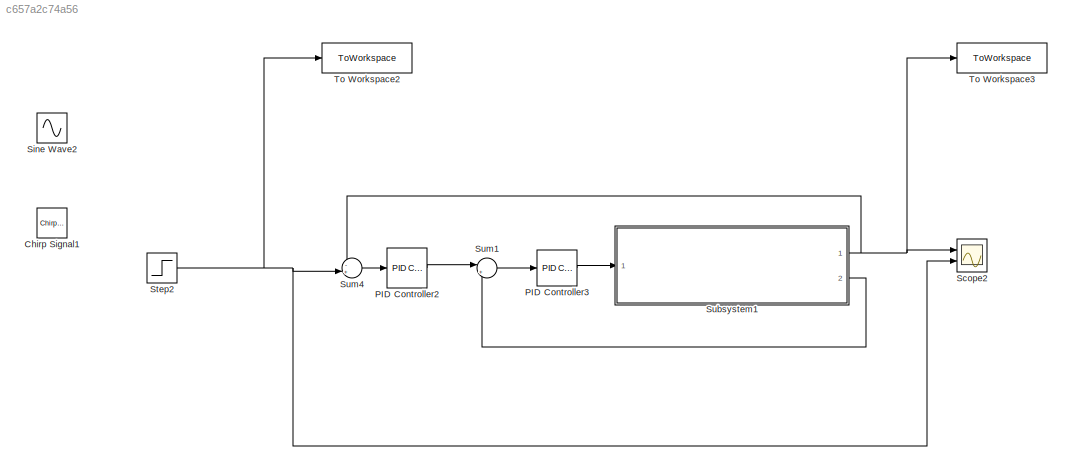
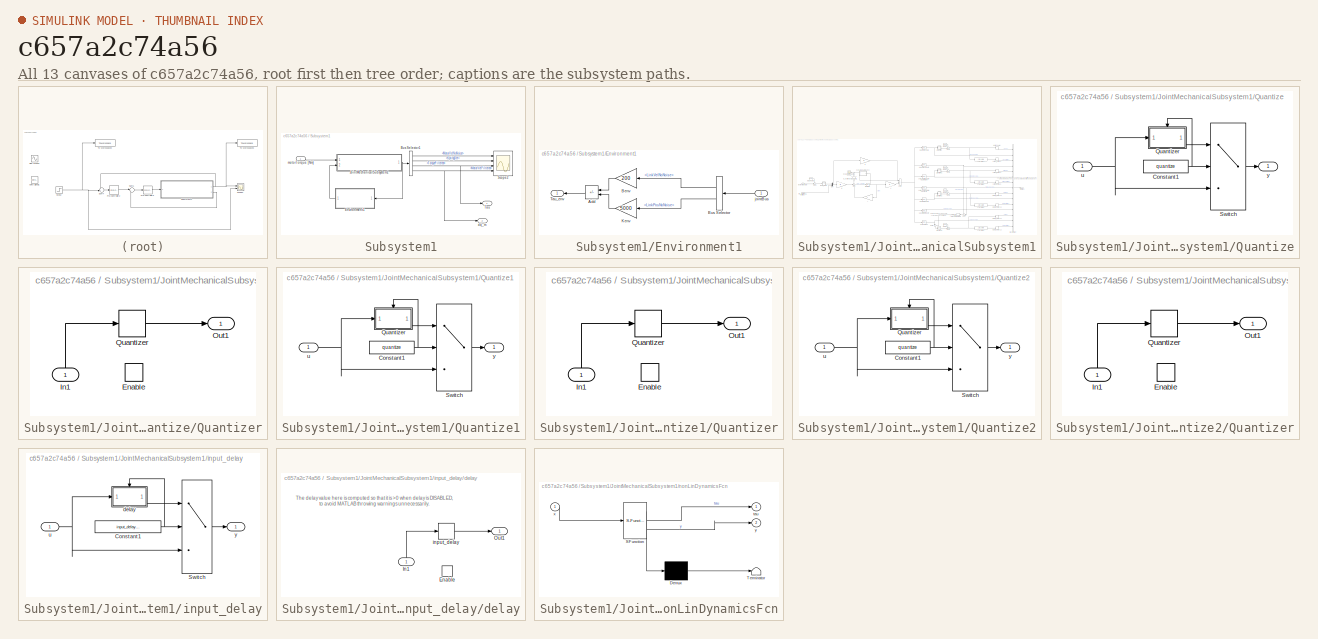
[diagram: thumbnail index - all 13 canvases of the model, root first then tree order]
MODEL slx_c657a2c74a56
KIND model
CONFIG AbsTol = auto
CONFIG EnableMultiTasking = off
CONFIG FixedStep = 0.0005
CONFIG MaxStep = auto
CONFIG MinStep = auto
CONFIG RelTol = 1e-3
CONFIG SampleTimeConstraint = Unconstrained
CONFIG Solver = FixedStepAuto
CONFIG SolverName = FixedStepAuto
CONFIG StartTime = 0.0
CONFIG StopTime = 10
BLOCK [Reference] Chirp Signal1  REF=simulink/Sources/Chirp Signal
  Ports = [0, 1]
  SourceBlock = simulink/Sources/Chirp Signal
  SourceProductBaseCode = SL
  SourceType = chirp
BLOCK [Reference] PID Controller2  REF=simulink/Continuous/PID Controller
  Ports = [1, 1]
  SourceBlock = simulink/Continuous/PID Controller
  SourceProductBaseCode = SL
  SourceType = PID 1dof
BLOCK [Reference] PID Controller3  REF=simulink/Continuous/PID Controller
  Ports = [1, 1]
  SourceBlock = simulink/Continuous/PID Controller
  SourceProductBaseCode = SL
  SourceType = PID 1dof
BLOCK [Scope] Scope2
  Floating = off
  NumInputPorts = 2
  Ports = [2]
  ScopeSpecificationString = Simulink.scopes.TimeScopeBlockCfg('CurrentConfiguration', extmgr.ConfigurationSet(extmgr.Configuration('Core','General UI',true),extmgr.Configuration('Core','Source UI',true),extmgr.Configuration('Sources','WiredSimulink',true,'DataLoggingVariableName','ScopeData1'),extmgr.Configuration('Visuals','Time Domain',true,'SerializedDisplays',{struct('MinYLimReal','-2.2814','MaxYLimReal','19.5962','YLabe...<+1487ch>
BLOCK [Sin] Sine Wave2
  Frequency = 2*pi*50
  Ports = [0, 1]
  SampleTime = 0
BLOCK [Step] Step2
  After = 10
  SampleTime = 0
BLOCK [SubSystem] Subsystem1
  Ports = [1, 2]
  RequestExecContextInheritance = off
BLOCK [BusSelector] Subsystem1/Bus Selector1
  OutputSignals = MotorVelNoNoise,SpringDef,TorqueFiltered,MotorVelFiltered
  Ports = [1, 4]
BLOCK [SubSystem] Subsystem1/Environment1
  Ports = [1, 1]
  RequestExecContextInheritance = off
BLOCK [Sum] Subsystem1/Environment1/Add
  IconShape = rectangular
  Inputs = --
  Ports = [2, 1]
BLOCK [Gain] Subsystem1/Environment1/Benv
  Gain = 200
BLOCK [BusSelector] Subsystem1/Environment1/Bus Selector
  OutputSignals = LinkVelNoNoise,LinkPosNoNoise
  Ports = [1, 2]
BLOCK [Gain] Subsystem1/Environment1/Kenv
  Gain = 5000
BLOCK [Outport] Subsystem1/Environment1/Tau_env
BLOCK [Inport] Subsystem1/Environment1/jointBus
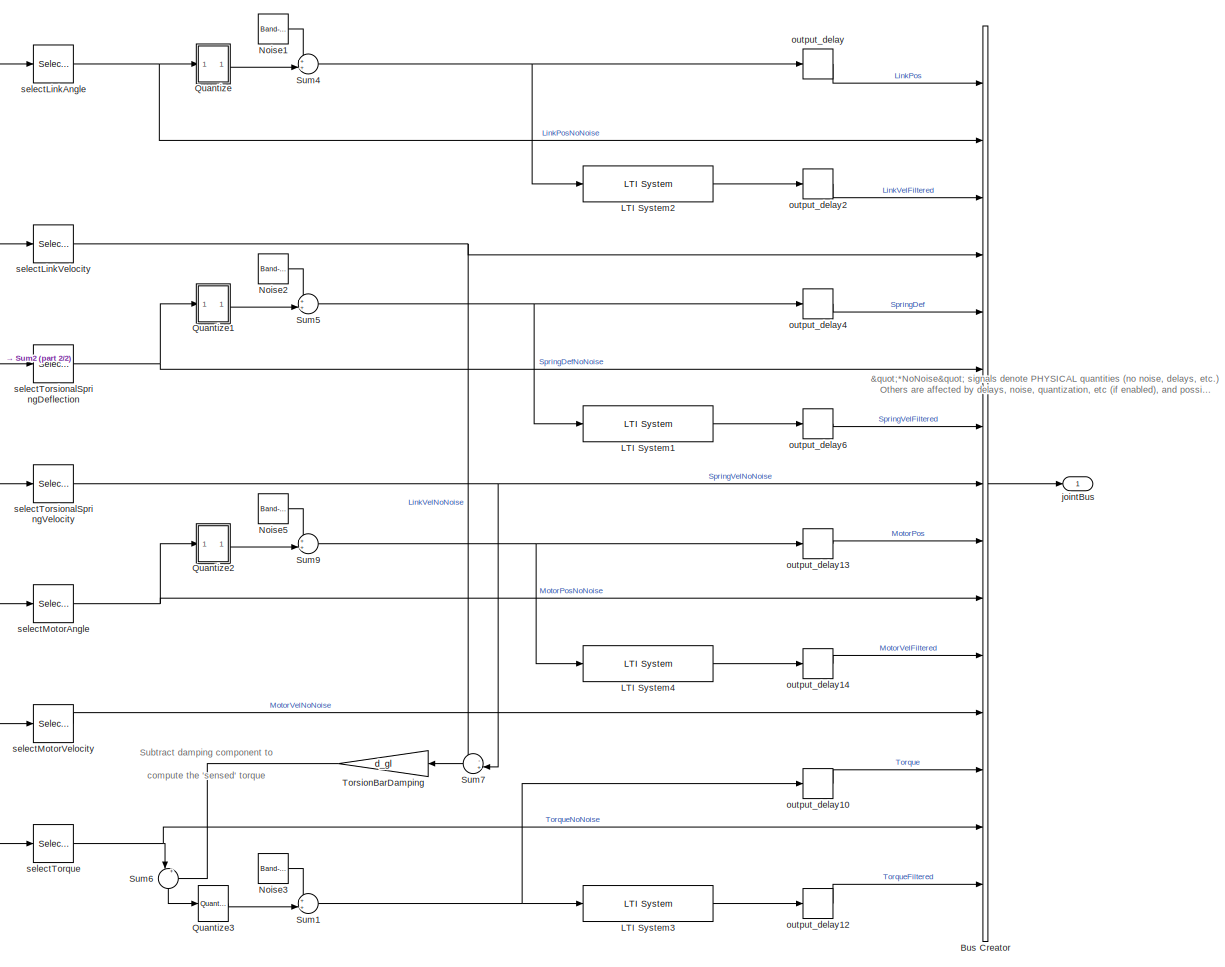
[diagram: Subsystem1/JointMechanicalSubsystem1 - part 1/2, right side, full height]
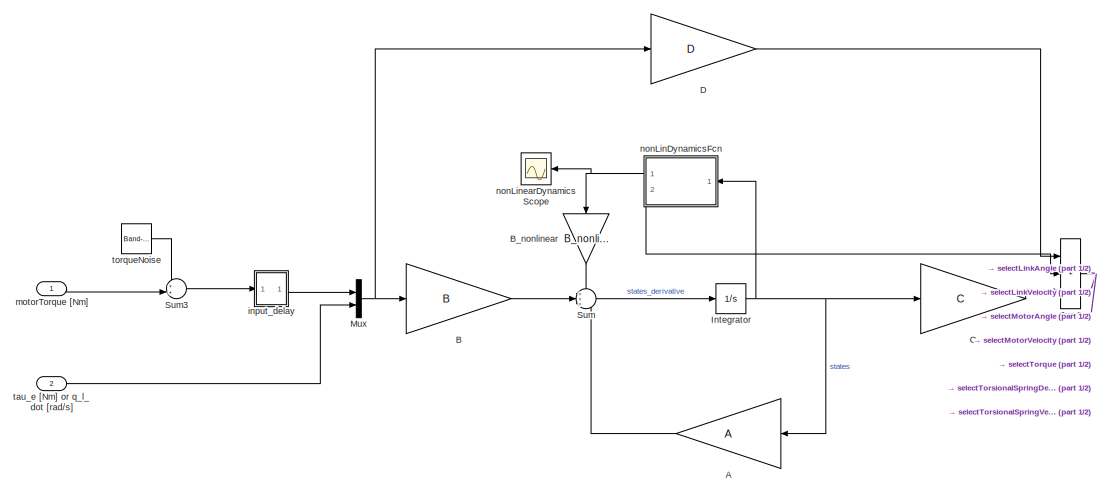
[diagram: Subsystem1/JointMechanicalSubsystem1 - part 2/2, middle left region]
BLOCK [SubSystem] Subsystem1/JointMechanicalSubsystem1
  AncestorBlock = cjt_library_models/Joint models/JointMechanicalSubsystem
  Ports = [2, 1]
  RequestExecContextInheritance = off
BLOCK [Gain] Subsystem1/JointMechanicalSubsystem1/A
  Gain = A
  Multiplication = Matrix(K*u)
BLOCK [Gain] Subsystem1/JointMechanicalSubsystem1/B
  Gain = B
  Multiplication = Matrix(K*u)
BLOCK [Gain] Subsystem1/JointMechanicalSubsystem1/B_nonlinear
  Gain = B_nonlinear
  NameLocation = left
BLOCK [BusCreator] Subsystem1/JointMechanicalSubsystem1/Bus Creator
  DisplayOption = bar
  InheritFromInputs = on
  Inputs = 15
  Ports = [15, 1]
BLOCK [Gain] Subsystem1/JointMechanicalSubsystem1/C
  Gain = C
  Multiplication = Matrix(K*u)
  NameLocation = top
BLOCK [Gain] Subsystem1/JointMechanicalSubsystem1/D
  Gain = D
  Multiplication = Matrix(K*u)
BLOCK [Integrator] Subsystem1/JointMechanicalSubsystem1/Integrator
  Ports = [1, 1]
BLOCK [Reference] Subsystem1/JointMechanicalSubsystem1/LTI System1  REF=cstblocks/LTI System
  Ports = [1, 1]
  SourceBlock = cstblocks/LTI System
  SourceProductBaseCode = CT
  SourceType = LTI Block
BLOCK [Reference] Subsystem1/JointMechanicalSubsystem1/LTI System2  REF=cstblocks/LTI System
  Ports = [1, 1]
  SourceBlock = cstblocks/LTI System
  SourceProductBaseCode = CT
  SourceType = LTI Block
BLOCK [Reference] Subsystem1/JointMechanicalSubsystem1/LTI System3  REF=cstblocks/LTI System
  Ports = [1, 1]
  SourceBlock = cstblocks/LTI System
  SourceProductBaseCode = CT
  SourceType = LTI Block
BLOCK [Reference] Subsystem1/JointMechanicalSubsystem1/LTI System4  REF=cstblocks/LTI System
  Ports = [1, 1]
  SourceBlock = cstblocks/LTI System
  SourceProductBaseCode = CT
  SourceType = LTI Block
BLOCK [Mux] Subsystem1/JointMechanicalSubsystem1/Mux
  DisplayOption = bar
  Inputs = 2
  Ports = [2, 1]
BLOCK [Reference] Subsystem1/JointMechanicalSubsystem1/Noise1  REF=simulink/Sources/Band-Limited
White Noise
  Ports = [0, 1]
  SourceBlock = simulink/Sources/Band-Limited\nWhite Noise
  SourceProductBaseCode = SL
  SourceType = Band-Limited White Noise.
BLOCK [Reference] Subsystem1/JointMechanicalSubsystem1/Noise2  REF=simulink/Sources/Band-Limited
White Noise
  Ports = [0, 1]
  SourceBlock = simulink/Sources/Band-Limited\nWhite Noise
  SourceProductBaseCode = SL
  SourceType = Band-Limited White Noise.
BLOCK [Reference] Subsystem1/JointMechanicalSubsystem1/Noise3  REF=simulink/Sources/Band-Limited
White Noise
  Ports = [0, 1]
  SourceBlock = simulink/Sources/Band-Limited\nWhite Noise
  SourceProductBaseCode = SL
  SourceType = Band-Limited White Noise.
BLOCK [Reference] Subsystem1/JointMechanicalSubsystem1/Noise5  REF=simulink/Sources/Band-Limited
White Noise
  Ports = [0, 1]
  SourceBlock = simulink/Sources/Band-Limited\nWhite Noise
  SourceProductBaseCode = SL
  SourceType = Band-Limited White Noise.
BLOCK [SubSystem] Subsystem1/JointMechanicalSubsystem1/Quantize
  Ports = [1, 1]
  RequestExecContextInheritance = off
BLOCK [Constant] Subsystem1/JointMechanicalSubsystem1/Quantize/Constant1
  Value = quantize
BLOCK [SubSystem] Subsystem1/JointMechanicalSubsystem1/Quantize/Quantizer
  Ports = [1, 1, 1]
  RequestExecContextInheritance = off
BLOCK [EnablePort] Subsystem1/JointMechanicalSubsystem1/Quantize/Quantizer/Enable
  Ports = []
BLOCK [Inport] Subsystem1/JointMechanicalSubsystem1/Quantize/Quantizer/In1
  NameLocation = right
BLOCK [Outport] Subsystem1/JointMechanicalSubsystem1/Quantize/Quantizer/Out1
BLOCK [Quantizer] Subsystem1/JointMechanicalSubsystem1/Quantize/Quantizer/Quantizer
  QuantizationInterval = 1/(2^quantize_bits)
BLOCK [Switch] Subsystem1/JointMechanicalSubsystem1/Quantize/Switch
  Criteria = u2 > Threshold
  InputSameDT = off
  SaturateOnIntegerOverflow = off
  Threshold = 0.5
BLOCK [Inport] Subsystem1/JointMechanicalSubsystem1/Quantize/u
BLOCK [Outport] Subsystem1/JointMechanicalSubsystem1/Quantize/y
BLOCK [SubSystem] Subsystem1/JointMechanicalSubsystem1/Quantize1
  Ports = [1, 1]
  RequestExecContextInheritance = off
BLOCK [Constant] Subsystem1/JointMechanicalSubsystem1/Quantize1/Constant1
  Value = quantize
BLOCK [SubSystem] Subsystem1/JointMechanicalSubsystem1/Quantize1/Quantizer
  Ports = [1, 1, 1]
  RequestExecContextInheritance = off
BLOCK [EnablePort] Subsystem1/JointMechanicalSubsystem1/Quantize1/Quantizer/Enable
  Ports = []
BLOCK [Inport] Subsystem1/JointMechanicalSubsystem1/Quantize1/Quantizer/In1
  NameLocation = right
BLOCK [Outport] Subsystem1/JointMechanicalSubsystem1/Quantize1/Quantizer/Out1
BLOCK [Quantizer] Subsystem1/JointMechanicalSubsystem1/Quantize1/Quantizer/Quantizer
  QuantizationInterval = 1/(2^quantize_bits)
BLOCK [Switch] Subsystem1/JointMechanicalSubsystem1/Quantize1/Switch
  Criteria = u2 > Threshold
  InputSameDT = off
  SaturateOnIntegerOverflow = off
  Threshold = 0.5
BLOCK [Inport] Subsystem1/JointMechanicalSubsystem1/Quantize1/u
BLOCK [Outport] Subsystem1/JointMechanicalSubsystem1/Quantize1/y
BLOCK [SubSystem] Subsystem1/JointMechanicalSubsystem1/Quantize2
  Ports = [1, 1]
  RequestExecContextInheritance = off
BLOCK [Constant] Subsystem1/JointMechanicalSubsystem1/Quantize2/Constant1
  Value = quantize
BLOCK [SubSystem] Subsystem1/JointMechanicalSubsystem1/Quantize2/Quantizer
  Ports = [1, 1, 1]
  RequestExecContextInheritance = off
BLOCK [EnablePort] Subsystem1/JointMechanicalSubsystem1/Quantize2/Quantizer/Enable
  Ports = []
BLOCK [Inport] Subsystem1/JointMechanicalSubsystem1/Quantize2/Quantizer/In1
  NameLocation = right
BLOCK [Outport] Subsystem1/JointMechanicalSubsystem1/Quantize2/Quantizer/Out1
BLOCK [Quantizer] Subsystem1/JointMechanicalSubsystem1/Quantize2/Quantizer/Quantizer
  QuantizationInterval = 1/(2^quantize_bits)
BLOCK [Switch] Subsystem1/JointMechanicalSubsystem1/Quantize2/Switch
  Criteria = u2 > Threshold
  InputSameDT = off
  SaturateOnIntegerOverflow = off
  Threshold = 0.5
BLOCK [Inport] Subsystem1/JointMechanicalSubsystem1/Quantize2/u
BLOCK [Outport] Subsystem1/JointMechanicalSubsystem1/Quantize2/y
BLOCK [Reference] Subsystem1/JointMechanicalSubsystem1/Quantize3  REF=cjt_library_models/Joint models/JointMechanicalSubsystem/Quantize2
  Ports = [1, 1]
  SourceBlock = cjt_library_models/Joint models/JointMechanicalSubsystem/Quantize2
  SourceType = SubSystem
BLOCK [Sum] Subsystem1/JointMechanicalSubsystem1/Sum
  Inputs = +++
  Ports = [3, 1]
BLOCK [Sum] Subsystem1/JointMechanicalSubsystem1/Sum1
  Inputs = ++|
  Ports = [2, 1]
BLOCK [Sum] Subsystem1/JointMechanicalSubsystem1/Sum2
  IconShape = rectangular
  Inputs = +++
  Ports = [3, 1]
BLOCK [Sum] Subsystem1/JointMechanicalSubsystem1/Sum3
  Inputs = ++|
  Ports = [2, 1]
BLOCK [Sum] Subsystem1/JointMechanicalSubsystem1/Sum4
  Inputs = ++|
  Ports = [2, 1]
BLOCK [Sum] Subsystem1/JointMechanicalSubsystem1/Sum5
  Inputs = ++|
  Ports = [2, 1]
BLOCK [Sum] Subsystem1/JointMechanicalSubsystem1/Sum6
  Inputs = |+-
  NameLocation = left
  Ports = [2, 1]
BLOCK [Sum] Subsystem1/JointMechanicalSubsystem1/Sum7
  Inputs = -+|
  NameLocation = top
  Ports = [2, 1]
BLOCK [Sum] Subsystem1/JointMechanicalSubsystem1/Sum9
  Inputs = ++|
  Ports = [2, 1]
BLOCK [Gain] Subsystem1/JointMechanicalSubsystem1/TorsionBarDamping
  Gain = d_gl
  NameLocation = top
BLOCK [SubSystem] Subsystem1/JointMechanicalSubsystem1/input_delay
  Ports = [1, 1]
  RequestExecContextInheritance = off
BLOCK [Constant] Subsystem1/JointMechanicalSubsystem1/input_delay/Constant1
  Value = input_delay_enable
BLOCK [Switch] Subsystem1/JointMechanicalSubsystem1/input_delay/Switch
  Criteria = u2 > Threshold
  InputSameDT = off
  SaturateOnIntegerOverflow = off
BLOCK [SubSystem] Subsystem1/JointMechanicalSubsystem1/input_delay/delay
  Ports = [1, 1, 1]
  RequestExecContextInheritance = off
BLOCK [EnablePort] Subsystem1/JointMechanicalSubsystem1/input_delay/delay/Enable
  Ports = []
BLOCK [Inport] Subsystem1/JointMechanicalSubsystem1/input_delay/delay/In1
  NameLocation = right
BLOCK [Outport] Subsystem1/JointMechanicalSubsystem1/input_delay/delay/Out1
BLOCK [TransportDelay] Subsystem1/JointMechanicalSubsystem1/input_delay/delay/input_delay
  DelayTime = input_delay * jointObj.Ts + 1 - input_delay_enable
  Ports = [1, 1]
  TransDelayFeedthrough = on
BLOCK [Inport] Subsystem1/JointMechanicalSubsystem1/input_delay/u
BLOCK [Outport] Subsystem1/JointMechanicalSubsystem1/input_delay/y
BLOCK [Outport] Subsystem1/JointMechanicalSubsystem1/jointBus
BLOCK [Inport] Subsystem1/JointMechanicalSubsystem1/motorTorque [Nm]
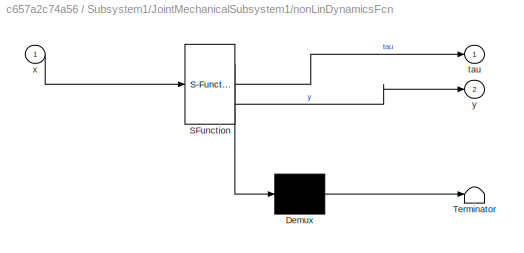
BLOCK [SubSystem] Subsystem1/JointMechanicalSubsystem1/nonLinDynamicsFcn
  ErrorFcn = Stateflow.Translate.translate
  PermitHierarchicalResolution = ExplicitOnly
  Ports = [1, 2]
  RequestExecContextInheritance = off
  SFBlockType = MATLAB Function
  TreatAsAtomicUnit = on
BLOCK [Demux] Subsystem1/JointMechanicalSubsystem1/nonLinDynamicsFcn/ Demux 
  Outputs = 1
  Ports = [1, 1]
BLOCK [S-Function] Subsystem1/JointMechanicalSubsystem1/nonLinDynamicsFcn/ SFunction 
  EnableBusSupport = on
  FunctionName = sf_sfun
  PortCounts = [1 3]
  Ports = [1, 3]
  SFcnIsStateOwnerBlock = off
  SFunctionDeploymentMode = off
  Tag = Stateflow S-Function 2
BLOCK [Terminator] Subsystem1/JointMechanicalSubsystem1/nonLinDynamicsFcn/ Terminator 
BLOCK [Outport] Subsystem1/JointMechanicalSubsystem1/nonLinDynamicsFcn/tau
  PortDimensions = 4
BLOCK [Inport] Subsystem1/JointMechanicalSubsystem1/nonLinDynamicsFcn/x
BLOCK [Outport] Subsystem1/JointMechanicalSubsystem1/nonLinDynamicsFcn/y
  Port = 2
  PortDimensions = 7
BLOCK [Scope] Subsystem1/JointMechanicalSubsystem1/nonLinearDynamicsScope
  Floating = off
  NameLocation = top
  NumInputPorts = 1
  Ports = [1]
  ScopeSpecificationString = Simulink.scopes.TimeScopeBlockCfg('CurrentConfiguration', extmgr.ConfigurationSet(extmgr.Configuration('Core','General UI',true),extmgr.Configuration('Core','Source UI',true),extmgr.Configuration('Sources','WiredSimulink',true,'DataLoggingLimitDataPoints',true,'DataLoggingSaveFormat','Array','DataLoggingDecimation','1','DataLoggingDecimateData',true),extmgr.Configuration('Visuals','Time Domain',tr...<+1773ch>
BLOCK [TransportDelay] Subsystem1/JointMechanicalSubsystem1/output_delay
  DelayTime = output_delay * jointObj.Ts
  Ports = [1, 1]
BLOCK [TransportDelay] Subsystem1/JointMechanicalSubsystem1/output_delay10
  DelayTime = output_delay * jointObj.Ts
  Ports = [1, 1]
BLOCK [TransportDelay] Subsystem1/JointMechanicalSubsystem1/output_delay12
  DelayTime = output_delay * jointObj.Ts
  Ports = [1, 1]
BLOCK [TransportDelay] Subsystem1/JointMechanicalSubsystem1/output_delay13
  DelayTime = output_delay * jointObj.Ts
  Ports = [1, 1]
BLOCK [TransportDelay] Subsystem1/JointMechanicalSubsystem1/output_delay14
  DelayTime = output_delay * jointObj.Ts
  Ports = [1, 1]
BLOCK [TransportDelay] Subsystem1/JointMechanicalSubsystem1/output_delay2
  DelayTime = output_delay * jointObj.Ts
  Ports = [1, 1]
BLOCK [TransportDelay] Subsystem1/JointMechanicalSubsystem1/output_delay4
  DelayTime = output_delay * jointObj.Ts
  Ports = [1, 1]
BLOCK [TransportDelay] Subsystem1/JointMechanicalSubsystem1/output_delay6
  DelayTime = output_delay * jointObj.Ts
  Ports = [1, 1]
BLOCK [Selector] Subsystem1/JointMechanicalSubsystem1/selectLinkAngle
  IndexOptions = Index vector (dialog),Select all
  Indices = 3,1
  InputPortWidth = 3
  NumberOfDimensions = 2
  OutputSizes = 1,1
  Ports = [1, 1]
BLOCK [Selector] Subsystem1/JointMechanicalSubsystem1/selectLinkVelocity
  IndexOptions = Index vector (dialog),Select all
  Indices = 6,1
  InputPortWidth = 3
  NumberOfDimensions = 2
  OutputSizes = 1,1
  Ports = [1, 1]
BLOCK [Selector] Subsystem1/JointMechanicalSubsystem1/selectMotorAngle
  IndexOptions = Index vector (dialog),Select all
  Indices = 1,1
  InputPortWidth = 3
  NumberOfDimensions = 2
  OutputSizes = 1,1
  Ports = [1, 1]
BLOCK [Selector] Subsystem1/JointMechanicalSubsystem1/selectMotorVelocity
  IndexOptions = Index vector (dialog),Select all
  Indices = 4,1
  InputPortWidth = 3
  NumberOfDimensions = 2
  OutputSizes = 1,1
  Ports = [1, 1]
BLOCK [Selector] Subsystem1/JointMechanicalSubsystem1/selectTorque
  IndexOptions = Index vector (dialog),Select all
  Indices = 7,1
  InputPortWidth = 3
  NumberOfDimensions = 2
  OutputSizes = 1,1
  Ports = [1, 1]
BLOCK [Selector] Subsystem1/JointMechanicalSubsystem1/selectTorsionalSpringDeflection
  IndexOptions = Index vector (dialog),Select all
  Indices = 2,1
  InputPortWidth = 3
  NumberOfDimensions = 2
  OutputSizes = 1,1
  Ports = [1, 1]
BLOCK [Selector] Subsystem1/JointMechanicalSubsystem1/selectTorsionalSpringVelocity
  IndexOptions = Index vector (dialog),Select all
  Indices = 5,1
  InputPortWidth = 3
  NumberOfDimensions = 2
  OutputSizes = 1,1
  Ports = [1, 1]
BLOCK [Inport] Subsystem1/JointMechanicalSubsystem1/tau_e [Nm] or q_l_dot [rad//s]
  Port = 2
BLOCK [Reference] Subsystem1/JointMechanicalSubsystem1/torqueNoise  REF=simulink/Sources/Band-Limited
White Noise
  Ports = [0, 1]
  SourceBlock = simulink/Sources/Band-Limited\nWhite Noise
  SourceProductBaseCode = SL
  SourceType = Band-Limited White Noise.
BLOCK [Scope] Subsystem1/Scope2
  Floating = off
  NumInputPorts = 4
  Ports = [4]
  ScopeSpecificationString = Simulink.scopes.TimeScopeBlockCfg('CurrentConfiguration', extmgr.ConfigurationSet(extmgr.Configuration('Core','General UI',true),extmgr.Configuration('Core','Source UI',true),extmgr.Configuration('Sources','WiredSimulink',true,'DataLoggingVariableName','ScopeData1'),extmgr.Configuration('Visuals','Time Domain',true,'SerializedDisplays',{struct('MinYLimReal','-26.08758','MaxYLimReal','74.04907','YL...<+3531ch>
BLOCK [Outport] Subsystem1/Tau
BLOCK [Outport] Subsystem1/dq_m
  Port = 2
BLOCK [Inport] Subsystem1/motorTorque [Nm]
BLOCK [Sum] Sum1
  Inputs = |+-
  Ports = [2, 1]
BLOCK [Sum] Sum4
  Inputs = -+|
  Ports = [2, 1]
BLOCK [ToWorkspace] To Workspace2
  FixptAsFi = on
  MaxDataPoints = inf
  Ports = [1]
  SampleTime = -1
  Save2DSignal = 2-D array (concatenate along first dimension)
  VariableName = Cascaded_PID_u
BLOCK [ToWorkspace] To Workspace3
  FixptAsFi = on
  MaxDataPoints = inf
  Ports = [1]
  SampleTime = -1
  Save2DSignal = 2-D array (concatenate along first dimension)
  VariableName = Cascaded_PID_y
ANNOTATION Subsystem1/JointMechanicalSubsystem1: Subtract damping component to compute the 'sensed' torque
ANNOTATION Subsystem1/JointMechanicalSubsystem1: "*NoNoise" signals denote PHYSICAL quantities (no noise, delays, etc.) Others are affected by delays, noise, quantization, etc (if enabled), and possibly filtered ("*Filtered")
ANNOTATION Subsystem1/JointMechanicalSubsystem1/input_delay/delay: The delay value here is computed so that it is >0 when delay is DISABLED, to avoid MATLAB throwing warnings unnecessarily.
LINE PID Controller2:1 -> Sum1:1
LINE PID Controller3:1 -> Subsystem1:1
NET Step2:1 -> Scope2:2, Sum4:2, To Workspace2:1
LINE Subsystem1/Bus Selector1:1 -> Subsystem1/Scope2:1
LINE Subsystem1/Bus Selector1:2 -> Subsystem1/Scope2:2
NET Subsystem1/Bus Selector1:3 -> Subsystem1/Scope2:3, Subsystem1/Tau:1
NET Subsystem1/Bus Selector1:4 -> Subsystem1/Scope2:4, Subsystem1/dq_m:1
LINE Subsystem1/Environment1/Add:1 -> Subsystem1/Environment1/Tau_env:1
LINE Subsystem1/Environment1/Benv:1 -> Subsystem1/Environment1/Add:1
LINE Subsystem1/Environment1/Bus Selector:1 -> Subsystem1/Environment1/Benv:1
LINE Subsystem1/Environment1/Bus Selector:2 -> Subsystem1/Environment1/Kenv:1
LINE Subsystem1/Environment1/Kenv:1 -> Subsystem1/Environment1/Add:2
LINE Subsystem1/Environment1/jointBus:1 -> Subsystem1/Environment1/Bus Selector:1
LINE Subsystem1/Environment1:1 -> Subsystem1/JointMechanicalSubsystem1:2
NET Subsystem1/JointMechanicalSubsystem1:1 -> Subsystem1/Bus Selector1:1, Subsystem1/Environment1:1
LINE Subsystem1/motorTorque [Nm]:1 -> Subsystem1/JointMechanicalSubsystem1:1
NET Subsystem1:1 -> Scope2:1, Sum4:1, To Workspace3:1
LINE Subsystem1:2 -> Sum1:2
LINE Sum1:1 -> PID Controller3:1
LINE Sum4:1 -> PID Controller2:1
note: NET lines group one-source signal fan-out (src -> all destinations, sorted); 1:1 wires keep LINE
CHART Subsystem1/JointMechanicalSubsystem1/nonLinDynamicsFcn states=1 transitions=1
  STATE_LABEL 'eML_blk_kernel()'
  STATE_LABEL 'SCRIPT:\nfunction [tau, y] = nonLinDynamics(x)\n%#codegen\n\nparams.a_CU = 0.003900;\nparams.c_CU = 380.000000;\nparams.c_FE = 460.000000;\nparams.diam = 98.000000;\nparams.len = 166.000000;\nparams.m = 3.400000;\nparams.I_m = 0.000278;\nparams.I_g = 0.000000;\nparams.I_l = 0.070000;\nparams.k_g = 0.000000;\nparams.k_b = 5000.000000;\nparams.d_m = 0.001500;\nparams.d_g = 0.000000;\nparams.d_l = 0.005000;\nparams.d_...<+1152ch>'
CHART  states=0 transitions=0
